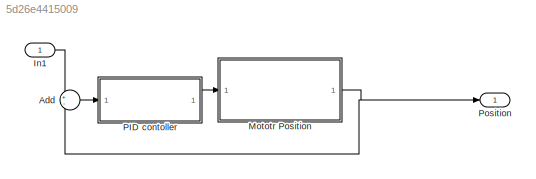
MODEL slx_5d26e4415009
KIND model
CONFIG AbsTol = auto
CONFIG EnableMultiTasking = off
CONFIG FixedStep = auto
CONFIG MaxStep = auto
CONFIG MinStep = auto
CONFIG RelTol = 1e-3
CONFIG SampleTimeConstraint = Unconstrained
CONFIG SolverName = VariableStepAuto
CONFIG StartTime = 0.0
CONFIG StopTime = 10.0
BLOCK [Sum] Add
  Inputs = +-
  Ports = [2, 1]
BLOCK [Inport] In1
  OutDataTypeStr = double
  PortDimensions = 1
  SampleTime = 0
  SamplingMode = Sample based
  SignalType = real
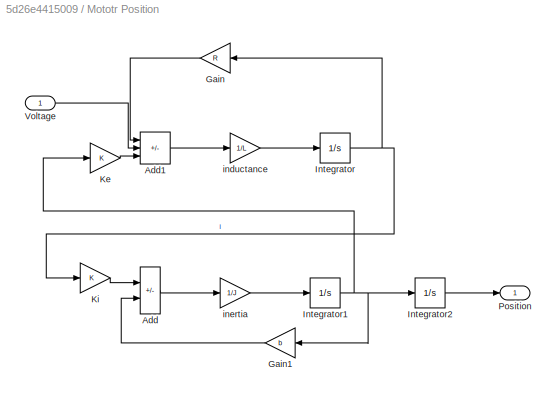
BLOCK [SubSystem] Mototr Position
  Ports = [1, 1]
  RequestExecContextInheritance = off
BLOCK [Sum] Mototr Position/Add
  IconShape = rectangular
  Inputs = +-
  Ports = [2, 1]
BLOCK [Sum] Mototr Position/Add1
  IconShape = rectangular
  Inputs = -+-
  Ports = [3, 1]
BLOCK [Gain] Mototr Position/Gain
  Gain = R
  NameLocation = top
BLOCK [Gain] Mototr Position/Gain1
  Gain = b
  NameLocation = top
BLOCK [Integrator] Mototr Position/Integrator
  Ports = [1, 1]
BLOCK [Integrator] Mototr Position/Integrator1
  Ports = [1, 1]
BLOCK [Integrator] Mototr Position/Integrator2
  Ports = [1, 1]
BLOCK [Gain] Mototr Position/Ke
  Gain = K
BLOCK [Gain] Mototr Position/Ki
  Gain = K
BLOCK [Outport] Mototr Position/Position
BLOCK [Inport] Mototr Position/Voltage
BLOCK [Gain] Mototr Position/inductance
  Gain = 1/L
BLOCK [Gain] Mototr Position/inertia
  Gain = 1/J
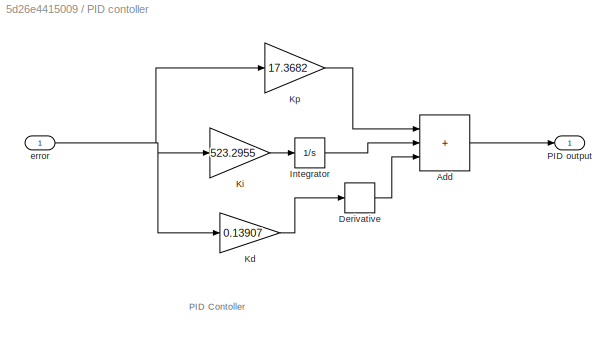
BLOCK [SubSystem] PID contoller
  Ports = [1, 1]
  RequestExecContextInheritance = off
BLOCK [Sum] PID contoller/Add
  IconShape = rectangular
  Inputs = +++
  Ports = [3, 1]
BLOCK [Derivative] PID contoller/Derivative
BLOCK [Integrator] PID contoller/Integrator
  Ports = [1, 1]
BLOCK [Gain] PID contoller/Kd
  Gain = 0.13907
BLOCK [Gain] PID contoller/Ki
  Gain = 523.2955
BLOCK [Gain] PID contoller/Kp
  Gain = 17.3682
BLOCK [Outport] PID contoller/PID output
BLOCK [Inport] PID contoller/error
BLOCK [Outport] Position
  OutDataTypeStr = double
  PortDimensions = 1
  SampleTime = 0
  SamplingMode = Sample based
  SignalType = real
ANNOTATION PID contoller: PID Contoller
LINE Add:1 -> PID contoller:1
LINE In1:1 -> Add:1
LINE Mototr Position/Add1:1 -> Mototr Position/inductance:1
LINE Mototr Position/Add:1 -> Mototr Position/inertia:1
LINE Mototr Position/Gain1:1 -> Mototr Position/Add:2
LINE Mototr Position/Gain:1 -> Mototr Position/Add1:1
NET Mototr Position/Integrator1:1 -> Mototr Position/Gain1:1, Mototr Position/Integrator2:1, Mototr Position/Ke:1
LINE Mototr Position/Integrator2:1 -> Mototr Position/Position:1
NET Mototr Position/Integrator:1 -> Mototr Position/Gain:1, Mototr Position/Ki:1
LINE Mototr Position/Ke:1 -> Mototr Position/Add1:3
LINE Mototr Position/Ki:1 -> Mototr Position/Add:1
LINE Mototr Position/Voltage:1 -> Mototr Position/Add1:2
LINE Mototr Position/inductance:1 -> Mototr Position/Integrator:1
LINE Mototr Position/inertia:1 -> Mototr Position/Integrator1:1
NET Mototr Position:1 -> Add:2, Position:1
LINE PID contoller/Add:1 -> PID contoller/PID output:1
LINE PID contoller/Derivative:1 -> PID contoller/Add:3
LINE PID contoller/Integrator:1 -> PID contoller/Add:2
LINE PID contoller/Kd:1 -> PID contoller/Derivative:1
LINE PID contoller/Ki:1 -> PID contoller/Integrator:1
LINE PID contoller/Kp:1 -> PID contoller/Add:1
NET PID contoller/error:1 -> PID contoller/Kd:1, PID contoller/Ki:1, PID contoller/Kp:1
LINE PID contoller:1 -> Mototr Position:1
note: NET lines group one-source signal fan-out (src -> all destinations, sorted); 1:1 wires keep LINE
